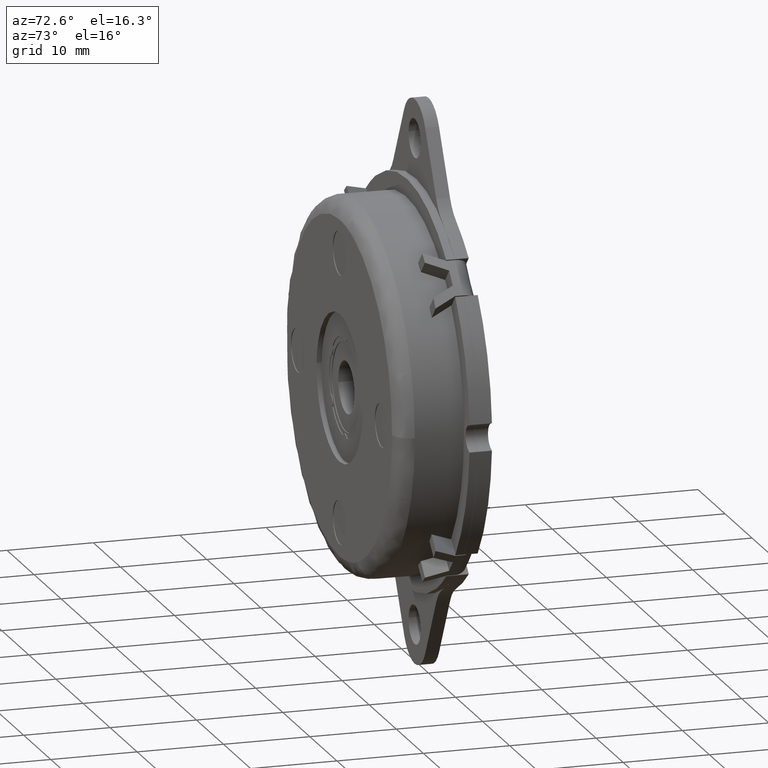
[diagram: clean part render]
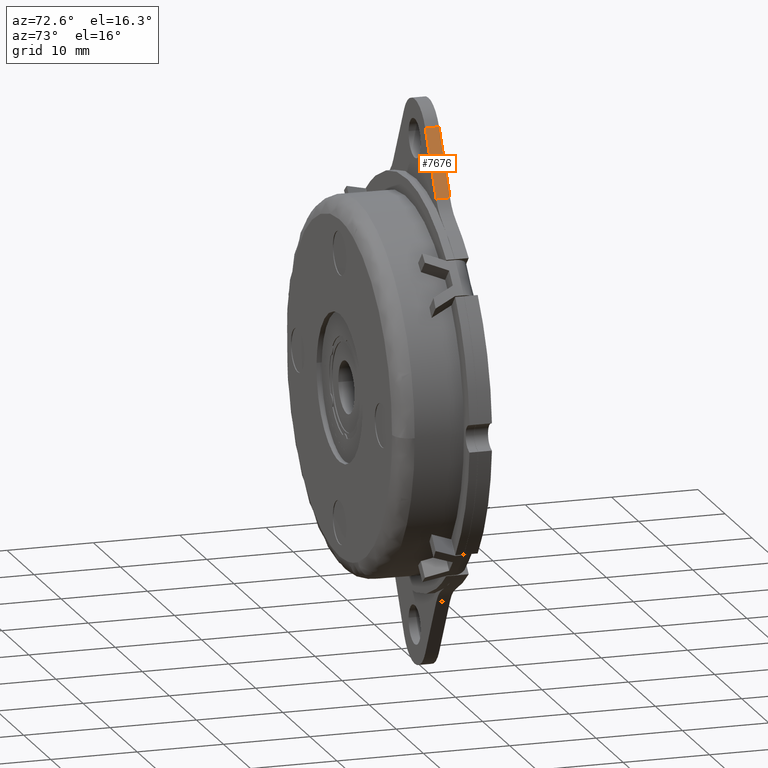
[diagram: same view with one face highlighted and labeled with its STEP entity id]
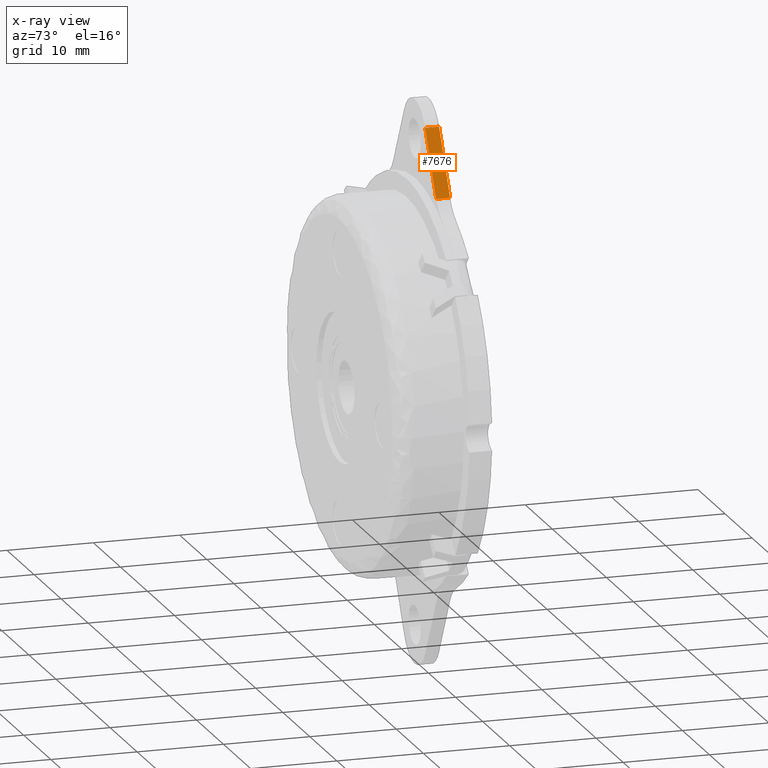
[diagram: x-ray of the same camera — body ghosted, the highlighted face saturated]
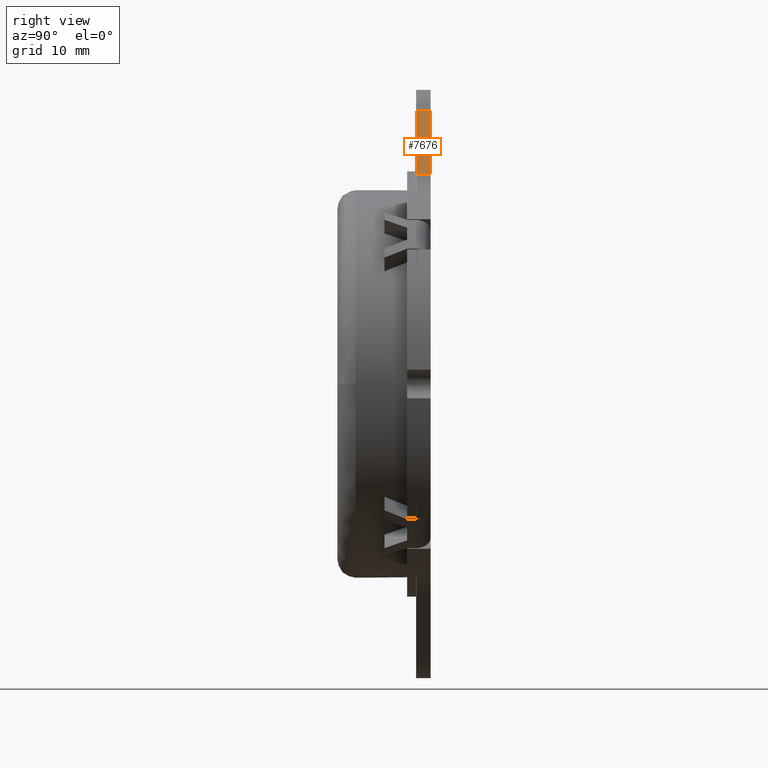
[diagram: same view with one face highlighted and labeled with its STEP entity id]
A machine part, auxiliary view. The second image highlights one B-rep face of the part: STEP entity #7676.
The next image is the same camera in x-ray: the body ghosted, the highlighted face saturated — about 0% of this face is hidden behind the body in this view.
A second angle (right view) of the same face is appended — the face is thin or edge-on in the first view.
In plain terms, the highlighted face is a freeform B-spline surface patch.
Its self-contained STEP definition (entity closure, byte-faithful):
#7602=CARTESIAN_POINT('',(7.959218677293991,0.0,23.214233630755398));
#7603=VERTEX_POINT('',#7602);
#7619=CARTESIAN_POINT('',(7.959218677293991,-1.600005000000000,23.214233630755398));
#7620=VERTEX_POINT('',#7619);
#7621=CARTESIAN_POINT('',(7.959218677293991,-1.600005000000000,23.214233630755398));
#7622=CARTESIAN_POINT('',(7.959218677293991,0.0,23.214233630755398));
#7623=QUASI_UNIFORM_CURVE('',1,(#7621,#7622),.UNSPECIFIED.,.F.,.U.);
#7624=EDGE_CURVE('',#7620,#7603,#7623,.T.);
#7649=CARTESIAN_POINT('',(3.698138006210654,-1.679925276688284,30.594623757790000));
#7650=CARTESIAN_POINT('',(8.161934126549486,-1.679925276688284,22.863121033794808));
#7651=CARTESIAN_POINT('',(3.698138006210654,0.079920290993444,30.594623757790000));
#7652=CARTESIAN_POINT('',(8.161934126549486,0.079920290993444,22.863121033794808));
#7653=B_SPLINE_SURFACE_WITH_KNOTS('',1,1,((#7649,#7651),(#7650,#7652)),.UNSPECIFIED.,.F.,.F.,.U.,(2,2),(2,2),(0.0,8.927575828582867),(0.041708319303021,0.958291688147560),.UNSPECIFIED.);
#7654=CARTESIAN_POINT('',(3.900853128904610,0.0,30.243511726449199));
#7655=VERTEX_POINT('',#7654);
#7656=CARTESIAN_POINT('',(3.900853128904610,0.0,30.243511726449199));
#7657=CARTESIAN_POINT('',(7.959218677293991,0.0,23.214233630755398));
#7658=QUASI_UNIFORM_CURVE('',1,(#7656,#7657),.UNSPECIFIED.,.F.,.U.);
#7659=EDGE_CURVE('',#7655,#7603,#7658,.T.);
#7660=ORIENTED_EDGE('',*,*,#7659,.F.);
#7661=CARTESIAN_POINT('',(3.900853128904610,-1.600005000000000,30.243511726449199));
#7662=VERTEX_POINT('',#7661);
#7663=CARTESIAN_POINT('',(3.900853128904610,-1.600005000000000,30.243511726449199));
#7664=CARTESIAN_POINT('',(3.900853128904610,0.0,30.243511726449199));
#7665=QUASI_UNIFORM_CURVE('',1,(#7663,#7664),.UNSPECIFIED.,.F.,.U.);
#7666=EDGE_CURVE('',#7662,#7655,#7665,.T.);
#7667=ORIENTED_EDGE('',*,*,#7666,.F.);
#7668=CARTESIAN_POINT('',(3.900853128904610,-1.600005000000000,30.243511726449199));
#7669=CARTESIAN_POINT('',(7.959218677293991,-1.600005000000000,23.214233630755398));
#7670=QUASI_UNIFORM_CURVE('',1,(#7668,#7669),.UNSPECIFIED.,.F.,.U.);
#7671=EDGE_CURVE('',#7662,#7620,#7670,.T.);
#7672=ORIENTED_EDGE('',*,*,#7671,.T.);
#7673=ORIENTED_EDGE('',*,*,#7624,.T.);
#7674=EDGE_LOOP('',(#7660,#7667,#7672,#7673));
#7675=FACE_OUTER_BOUND('',#7674,.T.);
#7676=ADVANCED_FACE('',(#7675),#7653,.T.);